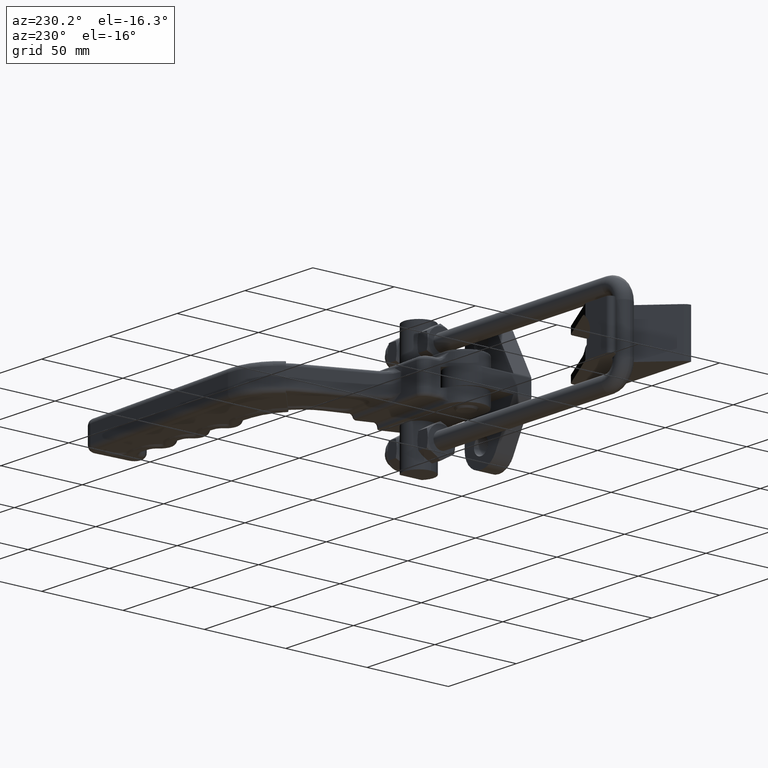
[diagram: clean part render]
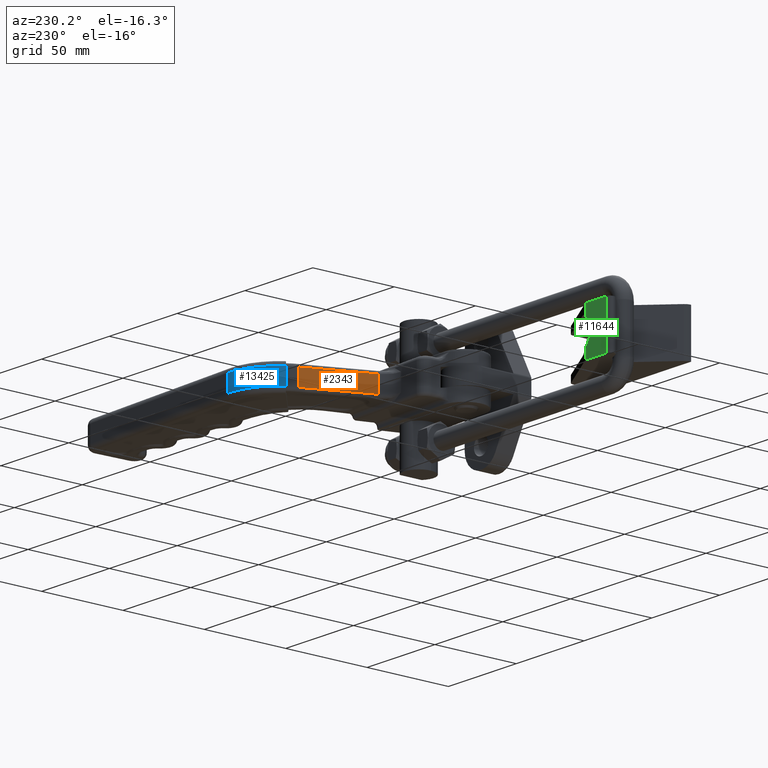
[diagram: same view with three faces highlighted in distinct colors, each labeled with its STEP entity id]
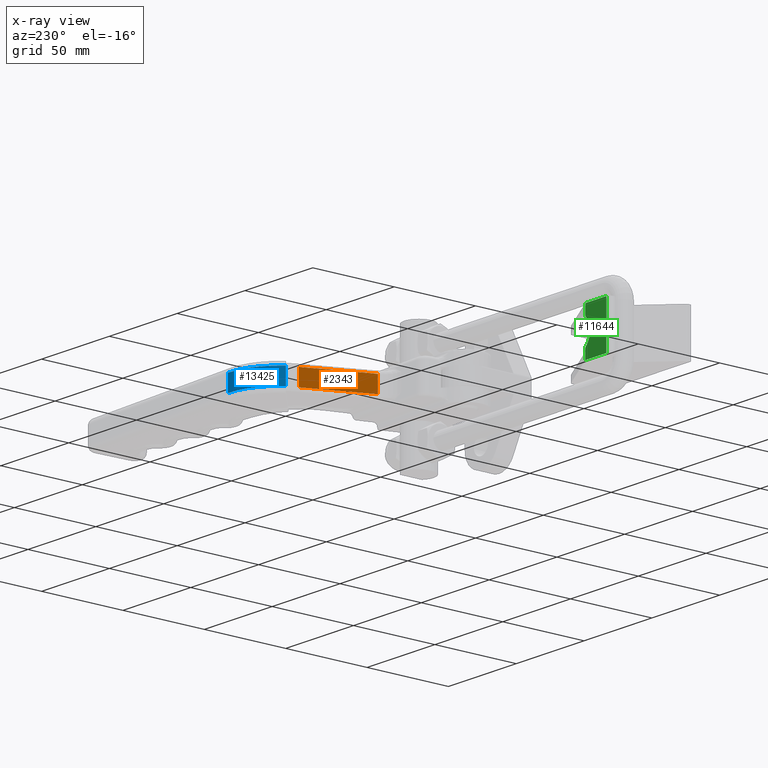
[diagram: x-ray of the same camera — body ghosted, the three highlighted faces saturated]
A machine part, auxiliary view with three faces highlighted in distinct colors.
The next image is the same camera in x-ray (body ghosted, the three faces saturated) — at least one of them is partly hidden behind the body in this view.
Their STEP definitions:

[orange] entity #2343 — the highlighted planar face has unit normal (0.924, -0.3823, 0).
#780 = LINE ( 'NONE', #10550, #8744 ) ;
#1026 = CARTESIAN_POINT ( 'NONE',  ( 56.29068373945503400, 94.90698263109459300, -4.999999999999994700 ) ) ;
#1592 = DIRECTION ( 'NONE',  ( 0.0000000000000000000, -0.0000000000000000000, 1.000000000000000000 ) ) ;
#1942 = FACE_OUTER_BOUND ( 'NONE', #8991, .T. ) ;
#2050 = CARTESIAN_POINT ( 'NONE',  ( 41.36625389843276700, 58.83781759317540100, 5.000000000000008900 ) ) ;
#2326 = DIRECTION ( 'NONE',  ( 0.3823355651759519600, 0.9240235471034196100, -1.017103319464681100E-016 ) ) ;
#2343 = ADVANCED_FACE ( 'NONE', ( #1942 ), #11815, .F. ) ;
#2709 = LINE ( 'NONE', #12575, #12573 ) ;
#3053 = EDGE_CURVE ( 'NONE', #10484, #12489, #8416, .T. ) ;
#4244 = AXIS2_PLACEMENT_3D ( 'NONE', #8196, #5694, #14480 ) ;
#4681 = CARTESIAN_POINT ( 'NONE',  ( 56.29068373945503400, 94.90698263109459300, -9.999999999999998200 ) ) ;
#4736 = ORIENTED_EDGE ( 'NONE', *, *, #7189, .T. ) ;
#4788 = CARTESIAN_POINT ( 'NONE',  ( 41.36625389843276700, 58.83781759317540100, -4.999999999999989300 ) ) ;
#5694 = DIRECTION ( 'NONE',  ( 0.9240235471034196100, -0.3823355651759519600, -0.0000000000000000000 ) ) ;
#5700 = LINE ( 'NONE', #4681, #12351 ) ;
#6439 = VERTEX_POINT ( 'NONE', #2050 ) ;
#7189 = EDGE_CURVE ( 'NONE', #6439, #9709, #2709, .T. ) ;
#7593 = ORIENTED_EDGE ( 'NONE', *, *, #3053, .T. ) ;
#8069 = ORIENTED_EDGE ( 'NONE', *, *, #13886, .T. ) ;
#8196 = CARTESIAN_POINT ( 'NONE',  ( 41.36625389843276700, 58.83781759317540100, -9.999999999999998200 ) ) ;
#8370 = EDGE_CURVE ( 'NONE', #10484, #9709, #5700, .T. ) ;
#8416 = LINE ( 'NONE', #4788, #19289 ) ;
#8744 = VECTOR ( 'NONE', #1592, 1000.000000000000000 ) ;
#8991 = EDGE_LOOP ( 'NONE', ( #8069, #4736, #17192, #7593 ) ) ;
#9478 = CARTESIAN_POINT ( 'NONE',  ( 56.29068373945503400, 94.90698263109459300, 5.000000000000005300 ) ) ;
#9709 = VERTEX_POINT ( 'NONE', #9478 ) ;
#10484 = VERTEX_POINT ( 'NONE', #1026 ) ;
#10550 = CARTESIAN_POINT ( 'NONE',  ( 41.36625389843276700, 58.83781759317540100, -9.999999999999998200 ) ) ;
#11815 = PLANE ( 'NONE',  #4244 ) ;
#12339 = DIRECTION ( 'NONE',  ( -0.3823355651759519600, -0.9240235471034196100, 1.243126279345721200E-016 ) ) ;
#12351 = VECTOR ( 'NONE', #19399, 1000.000000000000000 ) ;
#12489 = VERTEX_POINT ( 'NONE', #12619 ) ;
#12573 = VECTOR ( 'NONE', #2326, 1000.000000000000000 ) ;
#12575 = CARTESIAN_POINT ( 'NONE',  ( 41.36625389843276700, 58.83781759317540100, 5.000000000000008900 ) ) ;
#12619 = CARTESIAN_POINT ( 'NONE',  ( 41.36625389843276700, 58.83781759317540100, -4.999999999999989300 ) ) ;
#13886 = EDGE_CURVE ( 'NONE', #12489, #6439, #780, .T. ) ;
#14480 = DIRECTION ( 'NONE',  ( -0.3823355651759519600, -0.9240235471034196100, 0.0000000000000000000 ) ) ;
#17192 = ORIENTED_EDGE ( 'NONE', *, *, #8370, .F. ) ;
#19289 = VECTOR ( 'NONE', #12339, 1000.000000000000000 ) ;
#19399 = DIRECTION ( 'NONE',  ( 0.0000000000000000000, -0.0000000000000000000, 1.000000000000000000 ) ) ;

[blue] entity #13425 — the highlighted cylindrical surface (partial cylindrical patch) has radius 31 mm, axis along (0, 0, 1).
#249 = CIRCLE ( 'NONE', #12989, 30.99999999999998900 ) ;
#528 = CARTESIAN_POINT ( 'NONE',  ( 58.52008553428332500, 101.0775899502973700, 5.000000000000006200 ) ) ;
#1856 = DIRECTION ( 'NONE',  ( 0.0000000000000000000, -0.0000000000000000000, 1.000000000000000000 ) ) ;
#2337 = CARTESIAN_POINT ( 'NONE',  ( 58.52008553428332500, 101.0775899502973700, -4.999999999999994700 ) ) ;
#2857 = LINE ( 'NONE', #6296, #8749 ) ;
#4310 = DIRECTION ( 'NONE',  ( 0.0000000000000000000, -0.0000000000000000000, 1.000000000000000000 ) ) ;
#5653 = ORIENTED_EDGE ( 'NONE', *, *, #6305, .T. ) ;
#5665 = DIRECTION ( 'NONE',  ( 0.9990645734454833800, -0.04324324324324516800, 0.0000000000000000000 ) ) ;
#5995 = DIRECTION ( 'NONE',  ( -0.0000000000000000000, -0.0000000000000000000, 1.000000000000000000 ) ) ;
#6296 = CARTESIAN_POINT ( 'NONE',  ( 58.52008553428331100, 101.0775899502973700, -9.999999999999998200 ) ) ;
#6305 = EDGE_CURVE ( 'NONE', #15158, #8391, #249, .T. ) ;
#6341 = CYLINDRICAL_SURFACE ( 'NONE', #13129, 31.00000000000000400 ) ;
#6401 = ORIENTED_EDGE ( 'NONE', *, *, #16356, .F. ) ;
#7135 = LINE ( 'NONE', #17949, #18614 ) ;
#8391 = VERTEX_POINT ( 'NONE', #13281 ) ;
#8749 = VECTOR ( 'NONE', #1856, 1000.000000000000000 ) ;
#9049 = CARTESIAN_POINT ( 'NONE',  ( 84.01139015255762400, 83.43691567581602400, -9.999999999999998200 ) ) ;
#9104 = EDGE_CURVE ( 'NONE', #11818, #11213, #12670, .T. ) ;
#9674 = AXIS2_PLACEMENT_3D ( 'NONE', #19265, #4310, #18563 ) ;
#10078 = DIRECTION ( 'NONE',  ( -0.0000000000000000000, 0.0000000000000000000, -1.000000000000000000 ) ) ;
#11213 = VERTEX_POINT ( 'NONE', #2337 ) ;
#11275 = ORIENTED_EDGE ( 'NONE', *, *, #9104, .T. ) ;
#11818 = VERTEX_POINT ( 'NONE', #18993 ) ;
#12042 = DIRECTION ( 'NONE',  ( 0.0000000000000000000, -0.0000000000000000000, 1.000000000000000000 ) ) ;
#12670 = CIRCLE ( 'NONE', #9674, 31.00000000000000400 ) ;
#12814 = CARTESIAN_POINT ( 'NONE',  ( 84.01139015255762400, 83.43691567581602400, 5.000000000000003600 ) ) ;
#12989 = AXIS2_PLACEMENT_3D ( 'NONE', #12814, #10078, #5665 ) ;
#13129 = AXIS2_PLACEMENT_3D ( 'NONE', #9049, #12042, #17983 ) ;
#13281 = CARTESIAN_POINT ( 'NONE',  ( 85.35193069309815400, 114.4079174526260200, 5.000000000000001800 ) ) ;
#13425 = ADVANCED_FACE ( 'NONE', ( #14806 ), #6341, .T. ) ;
#13902 = EDGE_LOOP ( 'NONE', ( #11275, #16385, #5653, #6401 ) ) ;
#14806 = FACE_OUTER_BOUND ( 'NONE', #13902, .T. ) ;
#15158 = VERTEX_POINT ( 'NONE', #528 ) ;
#16356 = EDGE_CURVE ( 'NONE', #11818, #8391, #7135, .T. ) ;
#16385 = ORIENTED_EDGE ( 'NONE', *, *, #17533, .T. ) ;
#17533 = EDGE_CURVE ( 'NONE', #11213, #15158, #2857, .T. ) ;
#17949 = CARTESIAN_POINT ( 'NONE',  ( 85.35193069309815400, 114.4079174526260200, -9.999999999999998200 ) ) ;
#17983 = DIRECTION ( 'NONE',  ( 0.9990645734454833800, -0.04324324324324335700, 0.0000000000000000000 ) ) ;
#18563 = DIRECTION ( 'NONE',  ( 0.9990645734454833800, -0.04324324324324335700, 0.0000000000000000000 ) ) ;
#18614 = VECTOR ( 'NONE', #5995, 1000.000000000000000 ) ;
#18993 = CARTESIAN_POINT ( 'NONE',  ( 85.35193069309815400, 114.4079174526260200, -4.999999999999998200 ) ) ;
#19265 = CARTESIAN_POINT ( 'NONE',  ( 84.01139015255762400, 83.43691567581602400, -4.999999999999997300 ) ) ;

[green] entity #11644 — the highlighted planar face has unit normal (0, -1, 0).
#36 = LINE ( 'NONE', #15294, #11978 ) ;
#282 = ORIENTED_EDGE ( 'NONE', *, *, #16810, .T. ) ;
#543 = CARTESIAN_POINT ( 'NONE',  ( -88.99999999999997200, 40.00000000000000000, -14.00000000000000200 ) ) ;
#1171 = EDGE_CURVE ( 'NONE', #11520, #12083, #14516, .T. ) ;
#1209 = EDGE_LOOP ( 'NONE', ( #2527, #14223, #13063, #16616, #282, #10425 ) ) ;
#1845 = DIRECTION ( 'NONE',  ( -0.0000000000000000000, -0.0000000000000000000, 1.000000000000000000 ) ) ;
#2127 = AXIS2_PLACEMENT_3D ( 'NONE', #16965, #7993, #18446 ) ;
#2527 = ORIENTED_EDGE ( 'NONE', *, *, #9987, .T. ) ;
#3128 = CARTESIAN_POINT ( 'NONE',  ( -88.99999999999997200, 40.00000000000000000, -7.599342076785331900 ) ) ;
#3130 = VECTOR ( 'NONE', #4030, 1000.000000000000000 ) ;
#4030 = DIRECTION ( 'NONE',  ( -1.000000000000000000, -0.0000000000000000000, -0.0000000000000000000 ) ) ;
#4739 = CARTESIAN_POINT ( 'NONE',  ( -88.99999999999997200, 40.00000000000000000, 13.99999999999999800 ) ) ;
#4830 = VERTEX_POINT ( 'NONE', #13423 ) ;
#7037 = CIRCLE ( 'NONE', #2127, 9.999999999999998200 ) ;
#7321 = CARTESIAN_POINT ( 'NONE',  ( -118.9999999999999700, 40.00000000000000000, -14.00000000000000200 ) ) ;
#7993 = DIRECTION ( 'NONE',  ( 0.0000000000000000000, 1.000000000000000000, 0.0000000000000000000 ) ) ;
#8299 = VECTOR ( 'NONE', #14746, 1000.000000000000000 ) ;
#8438 = CARTESIAN_POINT ( 'NONE',  ( -104.4999999999999600, 40.00000000000000000, -14.00000000000000200 ) ) ;
#8854 = VECTOR ( 'NONE', #16953, 1000.000000000000000 ) ;
#8891 = DIRECTION ( 'NONE',  ( 0.0000000000000000000, -0.0000000000000000000, -1.000000000000000000 ) ) ;
#9848 = PLANE ( 'NONE',  #13850 ) ;
#9987 = EDGE_CURVE ( 'NONE', #4830, #13552, #12464, .T. ) ;
#10080 = CARTESIAN_POINT ( 'NONE',  ( -88.99999999999997200, 40.00000000000000000, -14.00000000000000200 ) ) ;
#10397 = VECTOR ( 'NONE', #18272, 1000.000000000000000 ) ;
#10425 = ORIENTED_EDGE ( 'NONE', *, *, #17551, .T. ) ;
#10839 = LINE ( 'NONE', #18333, #10397 ) ;
#11520 = VERTEX_POINT ( 'NONE', #543 ) ;
#11644 = ADVANCED_FACE ( 'NONE', ( #16816 ), #9848, .F. ) ;
#11978 = VECTOR ( 'NONE', #1845, 1000.000000000000000 ) ;
#12083 = VERTEX_POINT ( 'NONE', #3128 ) ;
#12464 = LINE ( 'NONE', #18476, #8854 ) ;
#13063 = ORIENTED_EDGE ( 'NONE', *, *, #15114, .F. ) ;
#13423 = CARTESIAN_POINT ( 'NONE',  ( -104.4999999999999600, 40.00000000000000000, 13.99999999999999800 ) ) ;
#13504 = CARTESIAN_POINT ( 'NONE',  ( -88.99999999999997200, 40.00000000000000000, 7.599342076785330100 ) ) ;
#13552 = VERTEX_POINT ( 'NONE', #4739 ) ;
#13850 = AXIS2_PLACEMENT_3D ( 'NONE', #17168, #14022, #8891 ) ;
#14022 = DIRECTION ( 'NONE',  ( 0.0000000000000000000, -1.000000000000000000, 0.0000000000000000000 ) ) ;
#14223 = ORIENTED_EDGE ( 'NONE', *, *, #15085, .F. ) ;
#14516 = LINE ( 'NONE', #10080, #8299 ) ;
#14624 = LINE ( 'NONE', #7321, #3130 ) ;
#14746 = DIRECTION ( 'NONE',  ( -0.0000000000000000000, -0.0000000000000000000, 1.000000000000000000 ) ) ;
#15085 = EDGE_CURVE ( 'NONE', #16343, #13552, #36, .T. ) ;
#15114 = EDGE_CURVE ( 'NONE', #12083, #16343, #7037, .T. ) ;
#15294 = CARTESIAN_POINT ( 'NONE',  ( -88.99999999999997200, 40.00000000000000000, -14.00000000000000200 ) ) ;
#16343 = VERTEX_POINT ( 'NONE', #13504 ) ;
#16616 = ORIENTED_EDGE ( 'NONE', *, *, #1171, .F. ) ;
#16810 = EDGE_CURVE ( 'NONE', #11520, #18207, #14624, .T. ) ;
#16816 = FACE_OUTER_BOUND ( 'NONE', #1209, .T. ) ;
#16953 = DIRECTION ( 'NONE',  ( 1.000000000000000000, 0.0000000000000000000, 0.0000000000000000000 ) ) ;
#16965 = CARTESIAN_POINT ( 'NONE',  ( -82.49999999999995700, 40.00000000000000000, -4.337691538794984200E-016 ) ) ;
#17168 = CARTESIAN_POINT ( 'NONE',  ( -86.49999999999997200, 40.00000000000000000, 0.0000000000000000000 ) ) ;
#17551 = EDGE_CURVE ( 'NONE', #18207, #4830, #10839, .T. ) ;
#18207 = VERTEX_POINT ( 'NONE', #8438 ) ;
#18272 = DIRECTION ( 'NONE',  ( -0.0000000000000000000, -0.0000000000000000000, 1.000000000000000000 ) ) ;
#18333 = CARTESIAN_POINT ( 'NONE',  ( -104.4999999999999600, 40.00000000000000000, -14.00000000000000200 ) ) ;
#18446 = DIRECTION ( 'NONE',  ( 0.0000000000000000000, 0.0000000000000000000, 1.000000000000000000 ) ) ;
#18476 = CARTESIAN_POINT ( 'NONE',  ( -118.9999999999999700, 40.00000000000000000, 13.99999999999999800 ) ) ;